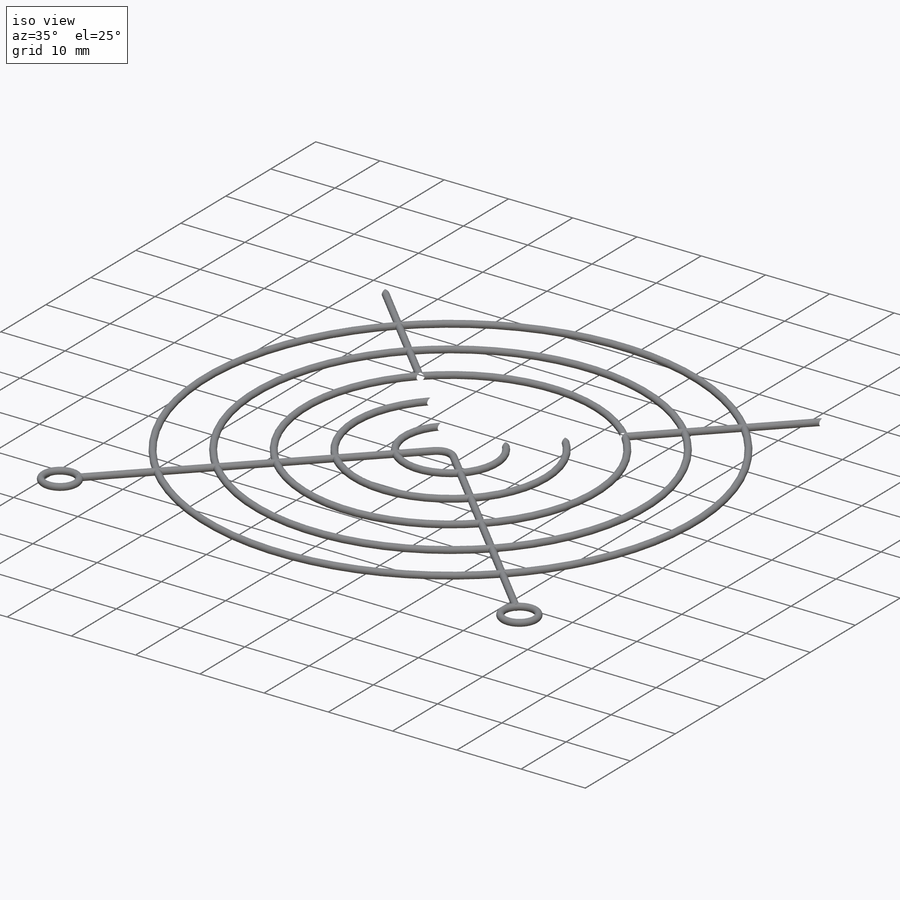
[diagram: iso view]
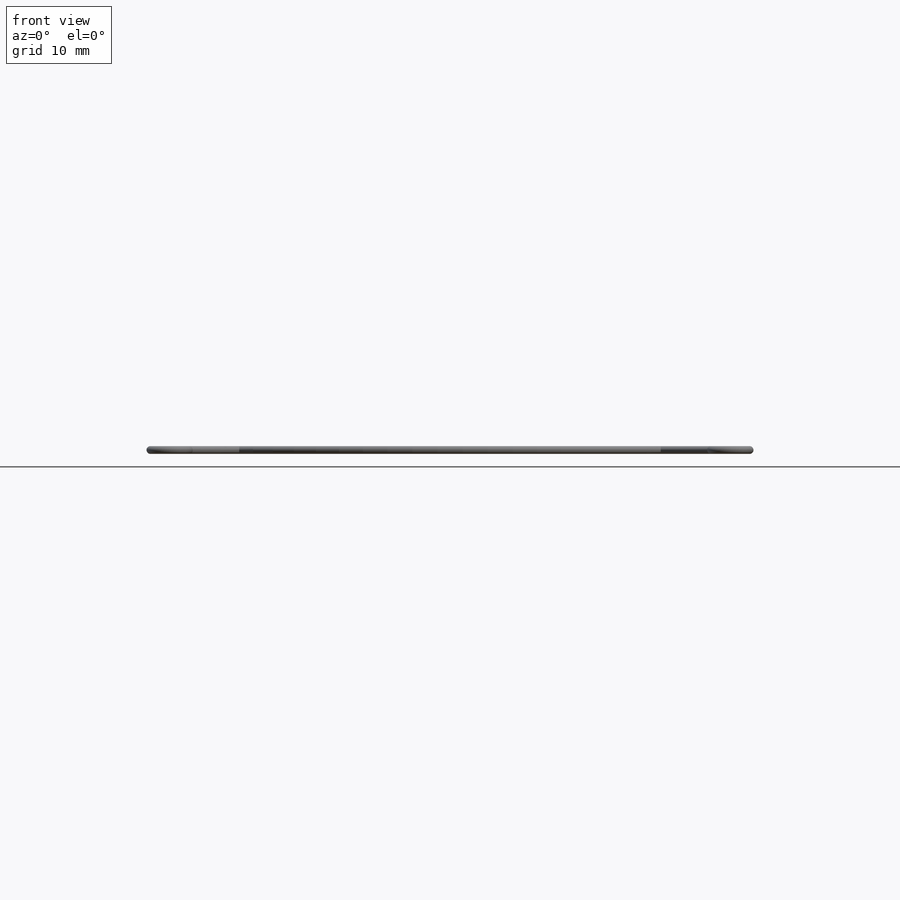
[diagram: front view]
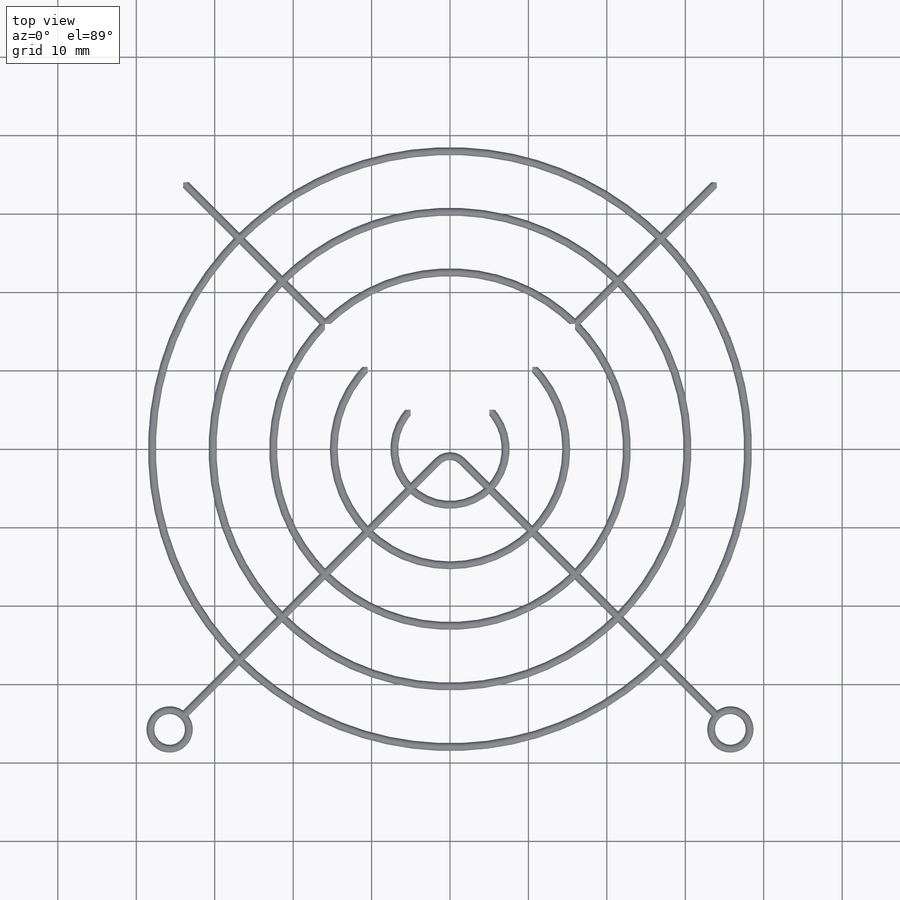
[diagram: top view]
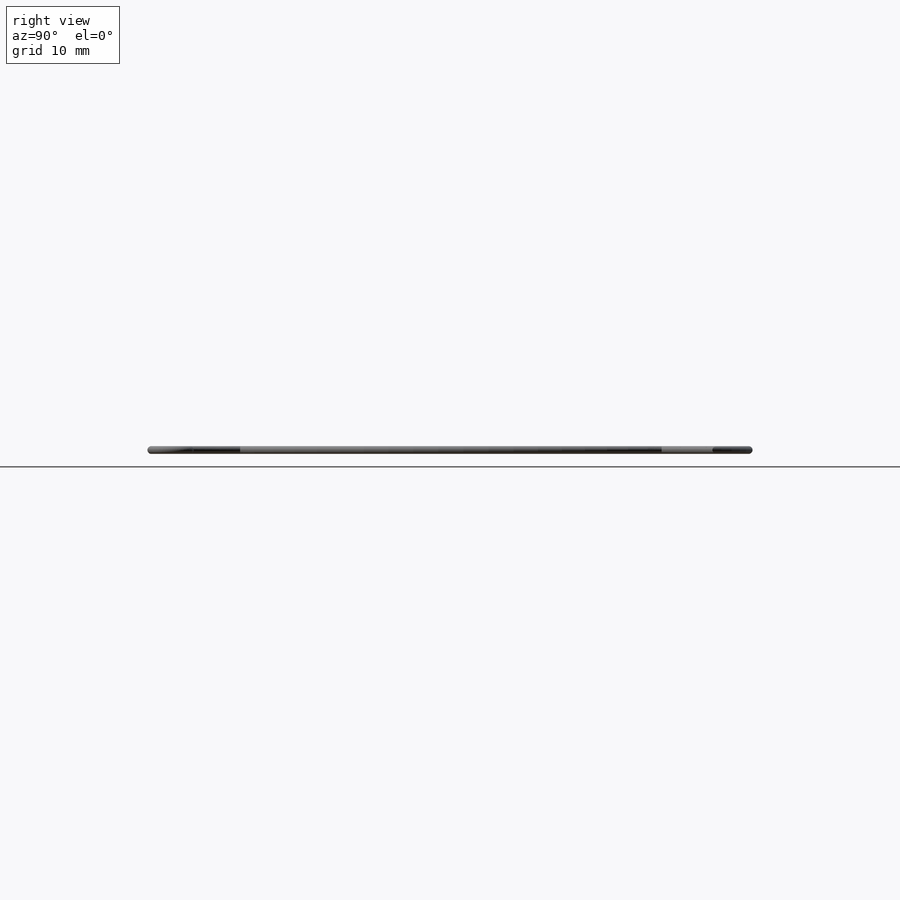
[diagram: right view]
SOLIDWORKS PART (.sldprt)
format: sldprt  version: not decoded by parser v0  size: 750,592 bytes
history: native  units: mm
features: sketch x17, sweep x8, plane x4, mirror x3, material x1 (+12 scaffold rows collapsed)
feature tree (45):
  scaffold x12  (default folders/planes/origin — collapsed)
  material  "Material <not specified>"
  plane  "Plane1"  Offset=0.5mm
  sketch  "Sketch1"  dims[c1.D9=4.9mm c1.D1=80.0mm c1.D2=80.0mm c1.D3=7.1mm c1.D4=7.725mm c1.D5=7.725mm c1.D6=7.725mm c1.D7=38.0mm c2.D1=71.5mm c2.D2=71.5mm c2.D8=3.1mm c3.D1=71.5mm]
  plane  "Plane3"
  plane  "Plane2"
  sketch  "Sketch2"
  sketch  "Sketch3"
  sketch  "Sketch4"
  sketch  "Sketch5"
  sketch  "Sketch6"
  sketch  "Sketch7"  dims[D1=1.0mm]
  sketch  "Sketch8"  dims[D1=1.0mm]
  sketch  "Sketch9"  dims[D1=1.0mm]
  sketch  "Sketch10"  dims[D1=1.0mm]
  sketch  "Sketch11"  dims[D1=1.0mm]
  sweep  "Sweep3"
  sweep  "Sweep4"
  sweep  "Sweep5"
  sweep  "Sweep6"
  sweep  "Sweep7"
  sketch  "Sketch22"  dims[D1=~2.243493mm D2=2.24mm D3=~2.147271mm D4=~1.51835mm]
  plane  "Plane5"
  sketch  "Sketch23"  dims[D1=1.0mm]
  sketch  "Sketch30"  dims[D1=4.9mm D2=~6.268255mm]
  sketch  "Sketch32"  dims[D1=1.0mm]
  sweep  "Sweep15"
  sketch  "Sketch33"  dims[D1=4.9mm]
  sketch  "Sketch34"  dims[D1=1.0mm]
  sweep  "Sweep16"
  sweep  "Sweep12"
  mirror  "Mirror6"
  mirror  "Mirror7"
  mirror  "Mirror10"
decode coverage: 12 of 28 modeling features carry decoded parameters
note: ~ marks probable driven/reference dimensions
summary: profile_refs inferred from adjacent sketches, not decoded
note: suppression state not decoded; provenance and decode notes live in map.json
